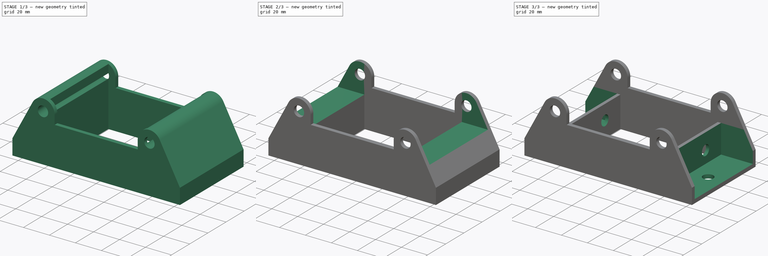
[diagram: build sequence overview — one tinted view per stage of 3, left to right]
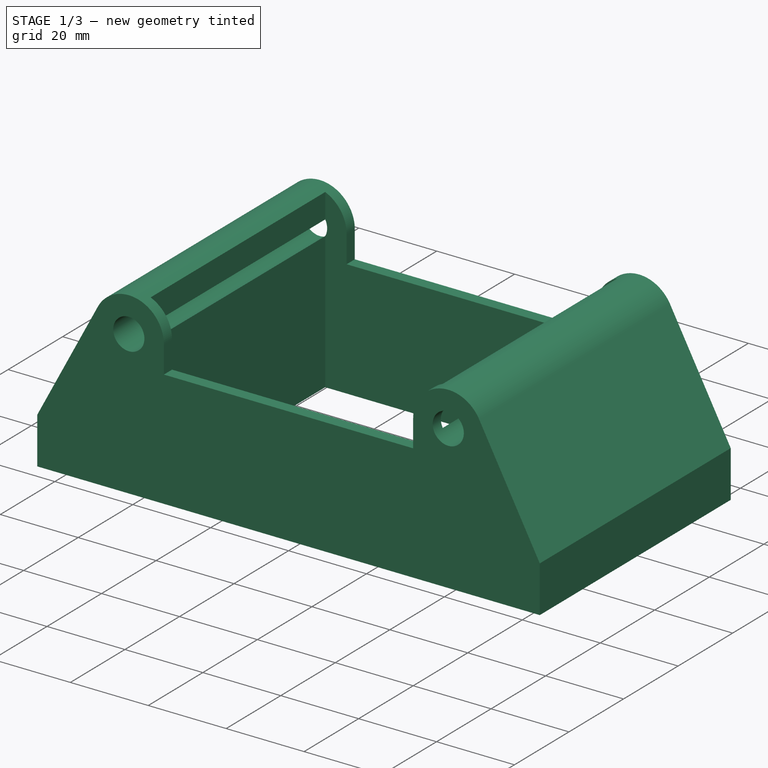
[diagram: stage 1 of 3 — iso view after this stage's code; geometry added in this stage tinted green]
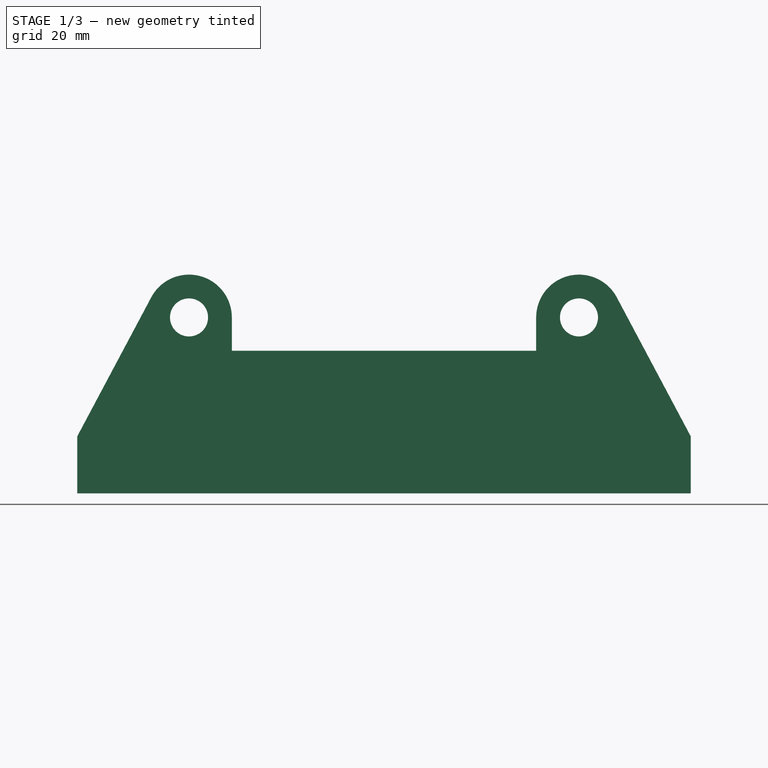
[diagram: stage 1 of 3 — front view after this stage's code; geometry added in this stage tinted green]
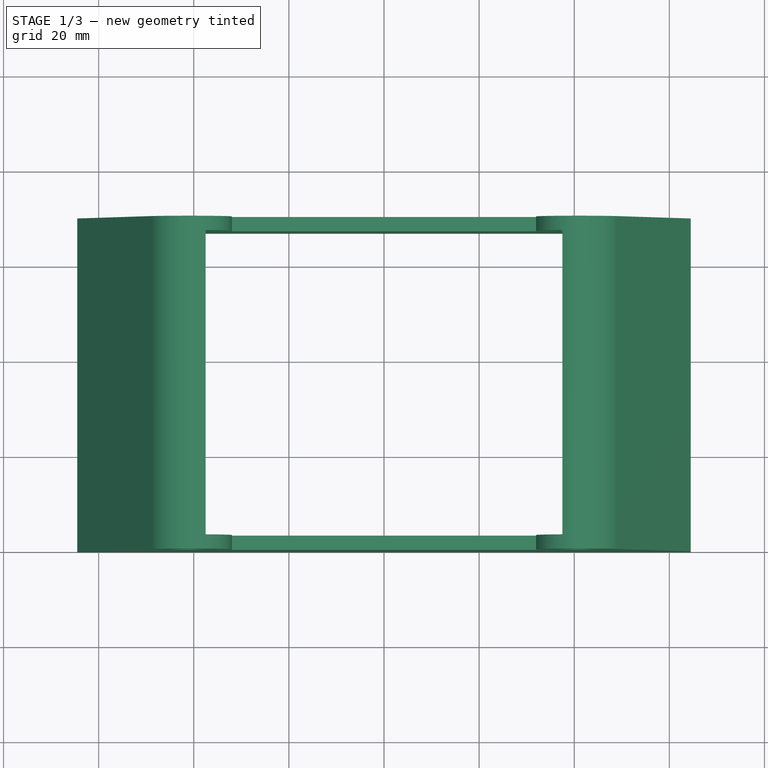
[diagram: stage 1 of 3 — top view after this stage's code; geometry added in this stage tinted green]
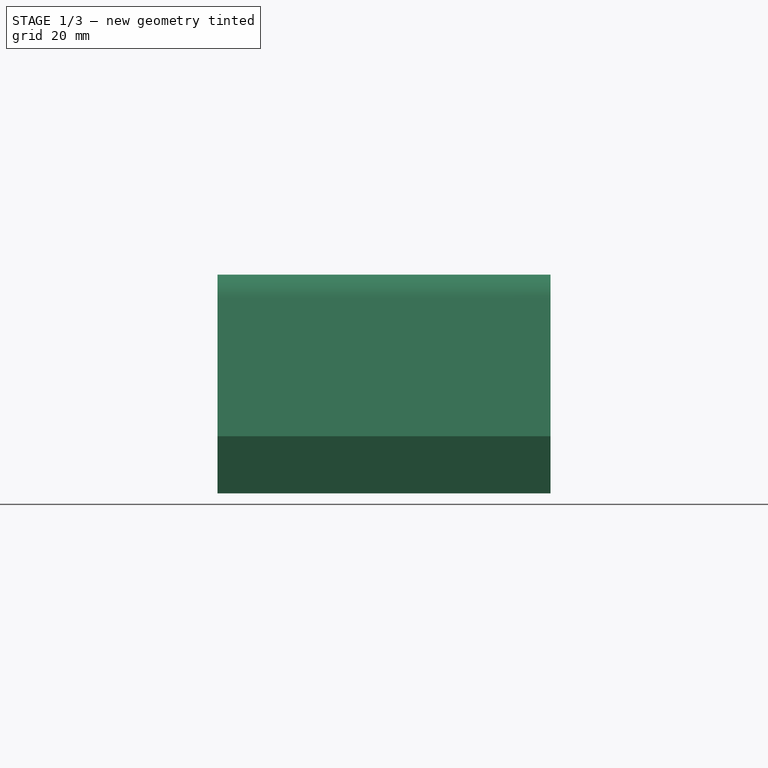
[diagram: stage 1 of 3 — right view after this stage's code; geometry added in this stage tinted green]
FCSTD DOCUMENT  (FreeCAD 0.18.4R)
Label: Winch-Model1-Cable-Guide
License: All rights reserved
LicenseURL: http://en.wikipedia.org/wiki/All_rights_reserved
objects: Sketcher::SketchObject×8, PartDesign::Pocket×7, PartDesign::Pad×1
note: 24 computed .brp shape members not serialized (recipe doc carries the construction recipe); baked Part::Feature solids carry a one-line shape summary decoded from their .brp

FEATURE [Sketcher::SketchObject] Sketch
  MapMode = 5
  sketch-geometry (4):
    g0: LineSegment StartX=-64.5 StartY=70 StartZ=0 EndX=64.5 EndY=70 EndZ=0
    g1: LineSegment StartX=64.5 StartY=70 StartZ=0 EndX=64.5 EndY=0 EndZ=0
    g2: LineSegment StartX=64.5 StartY=0 StartZ=0 EndX=-64.5 EndY=0 EndZ=0
    g3: LineSegment StartX=-64.5 StartY=0 StartZ=0 EndX=-64.5 EndY=70 EndZ=0
  constraints (12):
    c: Coincident(g0,g1)
    c: Coincident(g1,g2)
    c: Coincident(g2,g3)
    c: Coincident(g3,g0)
    c: Horizontal(g0)
    c: Horizontal(g2)
    c: Vertical(g1)
    c: Vertical(g3)
    c: PointOnObject(g2,g-1)
    c: DistanceX(g2,g1) = 129
    c: Symmetric(g2,g1,g-2)
    c: DistanceY(g2,g0) = 70
FEATURE [PartDesign::Pad] Pad
  Length = 46
  Length2 = 100
  Profile = -> Sketch
  Type = 0
FEATURE [Sketcher::SketchObject] Sketch001
  MapMode = 5
  Placement = pos=(0,0,0) rot=(1,0,0;1.5708rad)
  Support = -> [Pad]
  sketch-geometry (12):
    g0: LineSegment StartX=-64.5 StartY=12 StartZ=0 EndX=-48.9449 EndY=41.2282 EndZ=0
    g1: LineSegment StartX=-32 StartY=30 StartZ=0 EndX=32 EndY=30 EndZ=0
    g2: LineSegment StartX=-32 StartY=30 StartZ=0 EndX=-32 EndY=37 EndZ=0
    g3: LineSegment StartX=32 StartY=30 StartZ=0 EndX=32 EndY=37 EndZ=0
    g4: LineSegment StartX=48.9449 StartY=41.2282 StartZ=0 EndX=64.5 EndY=12 EndZ=0
    g5: LineSegment StartX=64.5 StartY=12 StartZ=0 EndX=64.5 EndY=52 EndZ=0
    g6: LineSegment StartX=-64.5 StartY=12 StartZ=0 EndX=-64.5 EndY=52 EndZ=0
    g7: LineSegment StartX=-64.5 StartY=52 StartZ=0 EndX=64.5 EndY=52 EndZ=0
    g8: ArcOfCircle CenterX=-41 CenterY=37 CenterZ=0 NormalX=0 NormalY=0 NormalZ=1 AngleXU=0 Radius=9 StartAngle=0 EndAngle=2.65252
    g9: ArcOfCircle CenterX=41 CenterY=37 CenterZ=0 NormalX=0 NormalY=0 NormalZ=1 AngleXU=0 Radius=9 StartAngle=0.489069 EndAngle=3.14159
    g10: Circle CenterX=-41 CenterY=37 CenterZ=0 NormalX=0 NormalY=0 NormalZ=1 AngleXU=0 Radius=4
    g11: Circle CenterX=41 CenterY=37 CenterZ=0 NormalX=0 NormalY=0 NormalZ=1 AngleXU=0 Radius=4
  constraints (33):
    c: Horizontal(g1)
    c: Coincident(g2,g1)
    c: Vertical(g2)
    c: Coincident(g3,g1)
    c: Vertical(g3)
    c: Coincident(g5,g4)
    c: Vertical(g5)
    c: Coincident(g6,g0)
    c: Vertical(g6)
    c: Coincident(g7,g6)
    c: Coincident(g7,g5)
    c: Horizontal(g7)
    c: Coincident(g8,g0)
    c: Coincident(g8,g2)
    c: Coincident(g9,g3)
    c: Coincident(g9,g4)
    c: DistanceX(g0,g4) = 129
    c: Symmetric(g0,g4,g-2)
    c: DistanceY(g-1,g0) = 12
    c: DistanceY(g-1,g8) = 37
    c: Symmetric(g8,g9,g-2)
    c: Symmetric(g1,g1,g-2)
    c: DistanceY(g-1,g1) = 30
    c: DistanceX(g8,g9) = 82
    c: Radius(g8) = 9
    c: Symmetric(g0,g4,g-2)
    c: Tangent(g0,g8)
    c: DistanceY(g0,g6) = 40
    c: DistanceY(g-1,g2) = 37
    c: Coincident(g10,g8)
    c: Coincident(g11,g9)
    c: Equal(g11,g10)
    c: Radius(g11) = 4
FEATURE [PartDesign::Pocket] Pocket
  Length = 5
  Length2 = 100
  Profile = -> Sketch001
  Type = 1
FEATURE [Sketcher::SketchObject] Sketch002
  MapMode = 5
  Placement = pos=(0,0,0) rot=(1,0,0;3.14159rad)
  Support = -> [Pocket]
  sketch-geometry (4):
    g0: LineSegment StartX=-37.5 StartY=-3 StartZ=0 EndX=37.5 EndY=-3 EndZ=0
    g1: LineSegment StartX=37.5 StartY=-3 StartZ=0 EndX=37.5 EndY=-67 EndZ=0
    g2: LineSegment StartX=37.5 StartY=-67 StartZ=0 EndX=-37.5 EndY=-67 EndZ=0
    g3: LineSegment StartX=-37.5 StartY=-67 StartZ=0 EndX=-37.5 EndY=-3 EndZ=0
  constraints (12):
    c: Coincident(g0,g1)
    c: Coincident(g1,g2)
    c: Coincident(g2,g3)
    c: Coincident(g3,g0)
    c: Horizontal(g0)
    c: Horizontal(g2)
    c: Vertical(g1)
    c: Vertical(g3)
    c: Symmetric(g0,g0,g-2)
    c: DistanceY(g0,g-1) = 3
    c: DistanceY(g2,g0) = 64
    c: DistanceX(g0,g0) = 75
FEATURE [PartDesign::Pocket] Pocket001
  Length = 5
  Length2 = 100
  Profile = -> Sketch002
  Type = 1
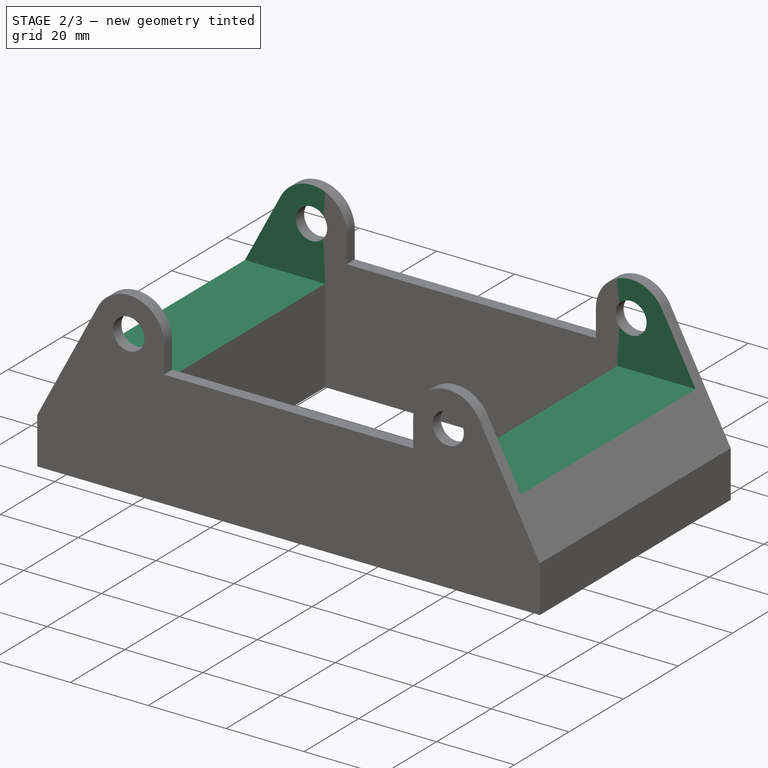
[diagram: stage 2 of 3 — iso view after this stage's code; geometry added in this stage tinted green]
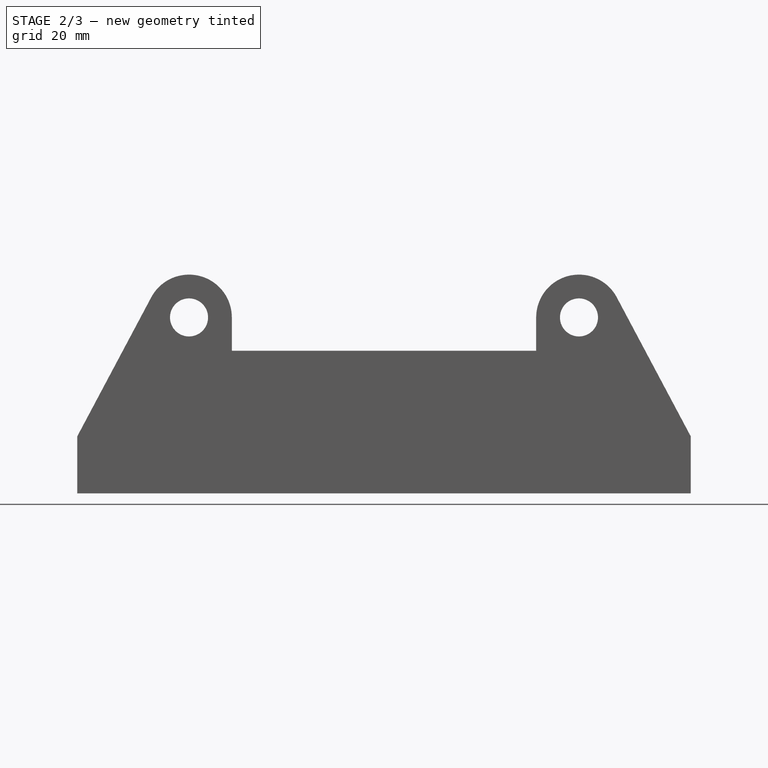
[diagram: stage 2 of 3 — front view after this stage's code; geometry added in this stage tinted green]
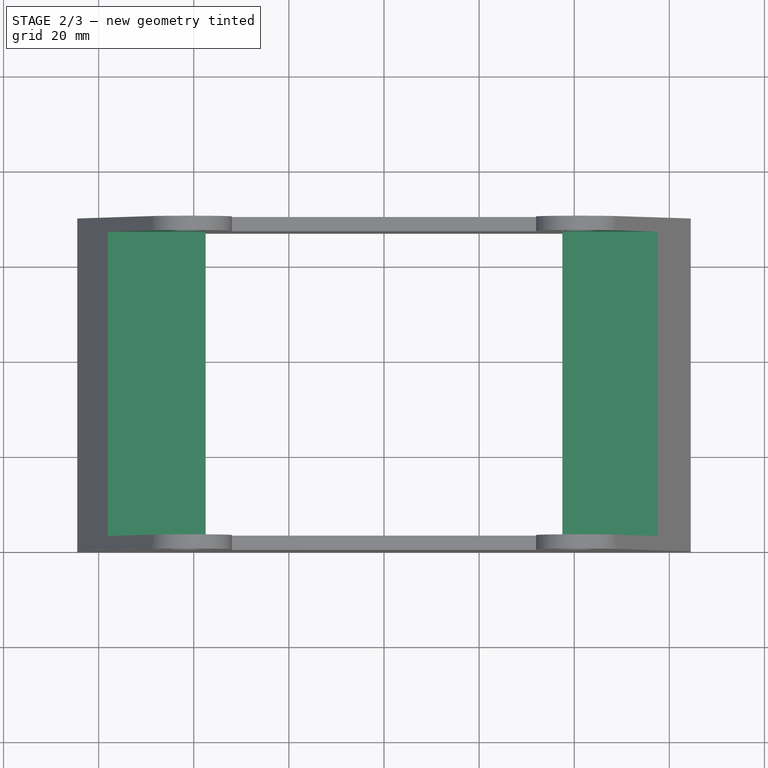
[diagram: stage 2 of 3 — top view after this stage's code; geometry added in this stage tinted green]
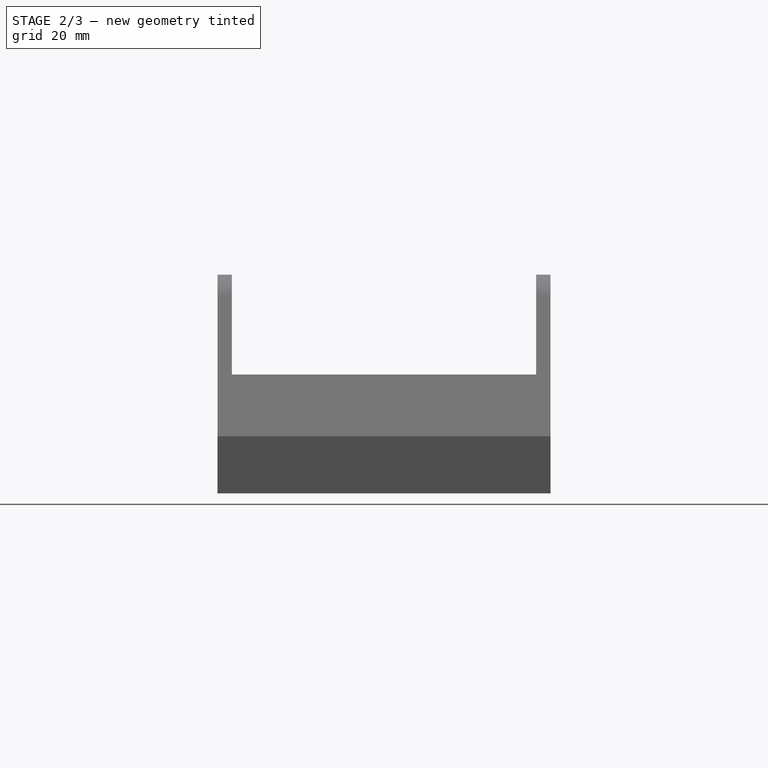
[diagram: stage 2 of 3 — right view after this stage's code; geometry added in this stage tinted green]
FEATURE [Sketcher::SketchObject] Sketch003
  MapMode = 5
  Placement = pos=(-37.5,0,0) rot=(0.57735,0.57735,0.57735;2.0944rad)
  Support = -> [Pocket001]
  sketch-geometry (4):
    g0: LineSegment StartX=3 StartY=60 StartZ=0 EndX=67 EndY=60 EndZ=0
    g1: LineSegment StartX=67 StartY=60 StartZ=0 EndX=67 EndY=24 EndZ=0
    g2: LineSegment StartX=67 StartY=24 StartZ=0 EndX=3 EndY=24 EndZ=0
    g3: LineSegment StartX=3 StartY=24 StartZ=0 EndX=3 EndY=60 EndZ=0
  constraints (12):
    c: Coincident(g0,g1)
    c: Coincident(g1,g2)
    c: Coincident(g2,g3)
    c: Coincident(g3,g0)
    c: Horizontal(g0)
    c: Horizontal(g2)
    c: Vertical(g1)
    c: Vertical(g3)
    c: DistanceX(g-1,g2) = 3
    c: DistanceX(g0,g0) = 64
    c: DistanceY(g-1,g2) = 24
    c: DistanceY(g-1,g0) = 60
FEATURE [PartDesign::Pocket] Pocket002
  Length = 5
  Length2 = 100
  Profile = -> Sketch003
  Type = 1
FEATURE [Sketcher::SketchObject] Sketch004
  MapMode = 5
  Placement = pos=(37.5,0,0) rot=(0.57735,-0.57735,-0.57735;2.0944rad)
  Support = -> [Pocket002]
  sketch-geometry (4):
    g0: LineSegment StartX=-67 StartY=60 StartZ=0 EndX=-3 EndY=60 EndZ=0
    g1: LineSegment StartX=-3 StartY=60 StartZ=0 EndX=-3 EndY=25 EndZ=0
    g2: LineSegment StartX=-3 StartY=25 StartZ=0 EndX=-67 EndY=25 EndZ=0
    g3: LineSegment StartX=-67 StartY=25 StartZ=0 EndX=-67 EndY=60 EndZ=0
  constraints (12):
    c: Coincident(g0,g1)
    c: Coincident(g1,g2)
    c: Coincident(g2,g3)
    c: Coincident(g3,g0)
    c: Horizontal(g0)
    c: Horizontal(g2)
    c: Vertical(g1)
    c: Vertical(g3)
    c: DistanceX(g1,g-1) = 3
    c: DistanceY(g-1,g1) = 25
    c: DistanceY(g-1,g0) = 60
    c: DistanceX(g0,g0) = 64
FEATURE [PartDesign::Pocket] Pocket003
  Length = 5
  Length2 = 100
  Profile = -> Sketch004
  Type = 1
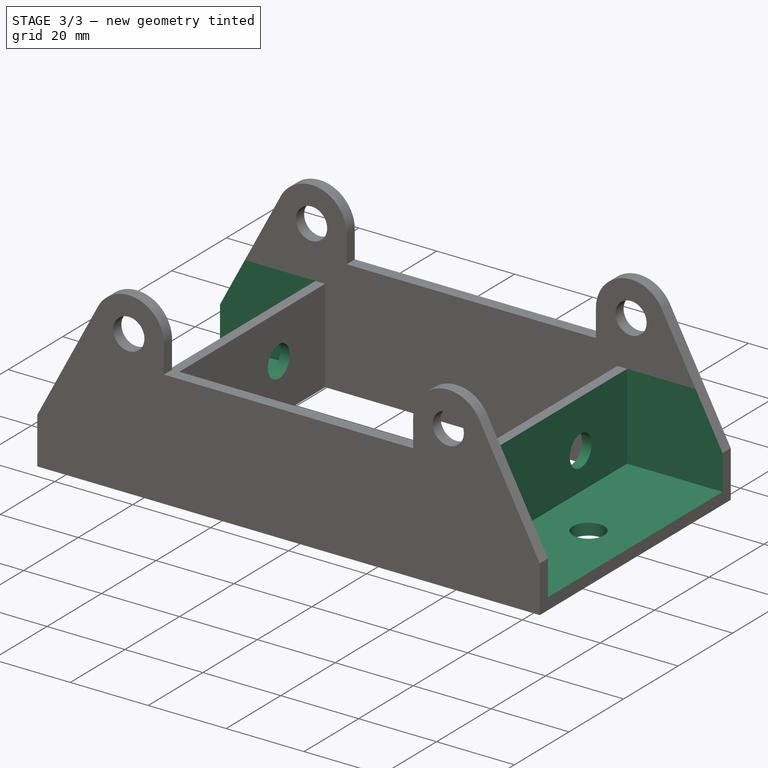
[diagram: stage 3 of 3 — iso view after this stage's code; geometry added in this stage tinted green]
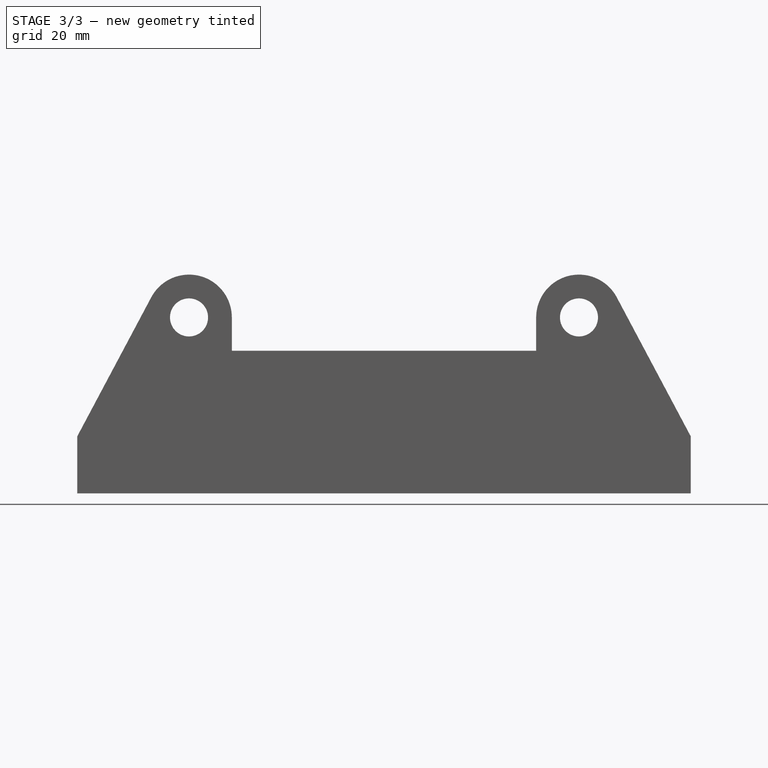
[diagram: stage 3 of 3 — front view after this stage's code; geometry added in this stage tinted green]
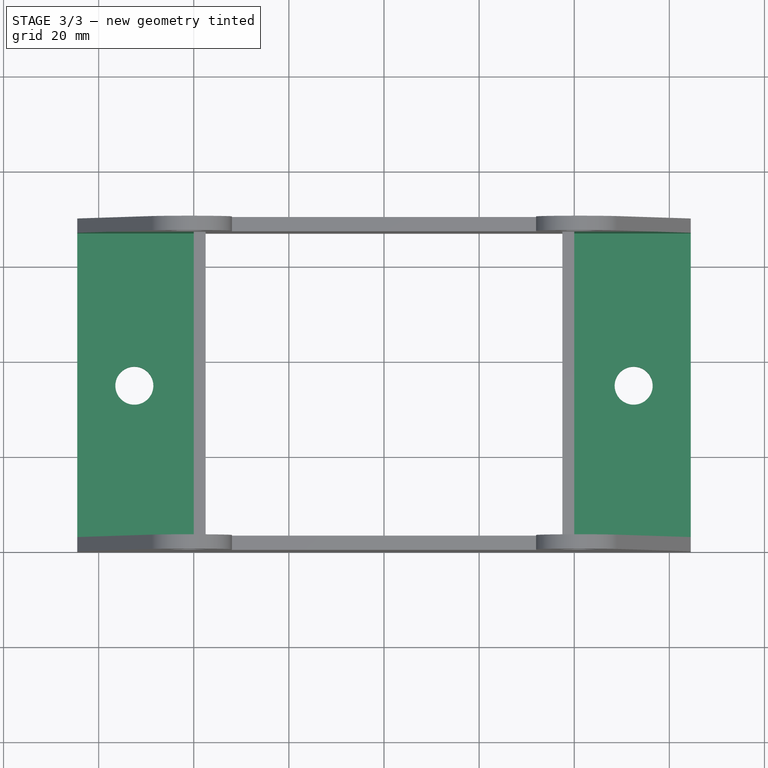
[diagram: stage 3 of 3 — top view after this stage's code; geometry added in this stage tinted green]
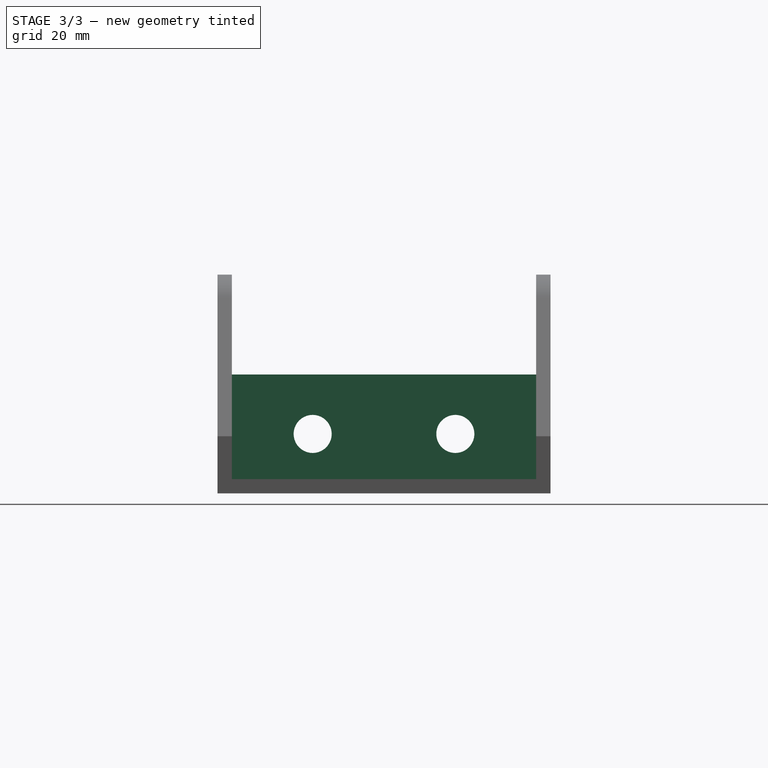
[diagram: stage 3 of 3 — right view after this stage's code; geometry added in this stage tinted green]
FEATURE [Sketcher::SketchObject] Sketch005
  MapMode = 5
  Placement = pos=(0,0,25) rot=(0,0,1;0rad)
  Support = -> [Pocket003]
  sketch-geometry (8):
    g0: LineSegment StartX=-64.5 StartY=67 StartZ=0 EndX=-40 EndY=67 EndZ=0
    g1: LineSegment StartX=-40 StartY=67 StartZ=0 EndX=-40 EndY=3 EndZ=0
    g2: LineSegment StartX=-40 StartY=3 StartZ=0 EndX=-64.5 EndY=3 EndZ=0
    g3: LineSegment StartX=-64.5 StartY=3 StartZ=0 EndX=-64.5 EndY=67 EndZ=0
    g4: LineSegment StartX=40 StartY=67 StartZ=0 EndX=64.5 EndY=67 EndZ=0
    g5: LineSegment StartX=64.5 StartY=67 StartZ=0 EndX=64.5 EndY=3 EndZ=0
    g6: LineSegment StartX=64.5 StartY=3 StartZ=0 EndX=40 EndY=3 EndZ=0
    g7: LineSegment StartX=40 StartY=3 StartZ=0 EndX=40 EndY=67 EndZ=0
  constraints (23):
    c: Coincident(g0,g1)
    c: Coincident(g1,g2)
    c: Coincident(g2,g3)
    c: Coincident(g3,g0)
    c: Horizontal(g0)
    c: Horizontal(g2)
    c: Vertical(g1)
    c: Vertical(g3)
    c: Coincident(g4,g5)
    c: Coincident(g5,g6)
    c: Coincident(g6,g7)
    c: Coincident(g7,g4)
    c: Horizontal(g4)
    c: Horizontal(g6)
    c: Vertical(g5)
    c: Vertical(g7)
    c: Symmetric(g2,g5,g-2)
    c: DistanceY(g-1,g2) = 3
    c: DistanceX(g2,g5) = 129
    c: Symmetric(g1,g6,g-2)
    c: DistanceX(g1,g-1) = 40
    c: DistanceY(g2,g0) = 64
    c: Symmetric(g0,g4,g-2)
FEATURE [PartDesign::Pocket] Pocket004
  Length = 22
  Length2 = 100
  Profile = -> Sketch005
  Type = 0
FEATURE [Sketcher::SketchObject] Sketch006
  MapMode = 5
  Placement = pos=(0,0,3) rot=(0,0,1;0rad)
  Support = -> [Pocket004]
  sketch-geometry (2):
    g0: Circle CenterX=-52.5 CenterY=35 CenterZ=0 NormalX=0 NormalY=0 NormalZ=1 AngleXU=0 Radius=4
    g1: Circle CenterX=52.5 CenterY=35 CenterZ=0 NormalX=0 NormalY=0 NormalZ=1 AngleXU=0 Radius=4
  constraints (5):
    c: Equal(g1,g0)
    c: Radius(g0) = 4
    c: Symmetric(g0,g1,g-2)
    c: DistanceY(g-1,g0) = 35
    c: DistanceX(g0,g1) = 105
FEATURE [PartDesign::Pocket] Pocket005
  Length = 5
  Length2 = 100
  Profile = -> Sketch006
  Type = 0
FEATURE [Sketcher::SketchObject] Sketch007
  MapMode = 5
  Placement = pos=(-40,0,0) rot=(0.57735,-0.57735,-0.57735;2.0944rad)
  Support = -> [Pocket005]
  sketch-geometry (2):
    g0: Circle CenterX=-50 CenterY=12.5 CenterZ=0 NormalX=0 NormalY=0 NormalZ=1 AngleXU=0 Radius=4
    g1: Circle CenterX=-20 CenterY=12.5 CenterZ=0 NormalX=0 NormalY=0 NormalZ=1 AngleXU=0 Radius=4
  constraints (6):
    c: Equal(g0,g1)
    c: Radius(g1) = 4
    c: DistanceY(g0,g1) = 0
    c: DistanceX(g0,g1) = 30
    c: DistanceY(g-1,g1) = 12.5
    c: DistanceX(g1,g-1) = 20
FEATURE [PartDesign::Pocket] Pocket006
  Length = 5
  Length2 = 100
  Profile = -> Sketch007
  Type = 1
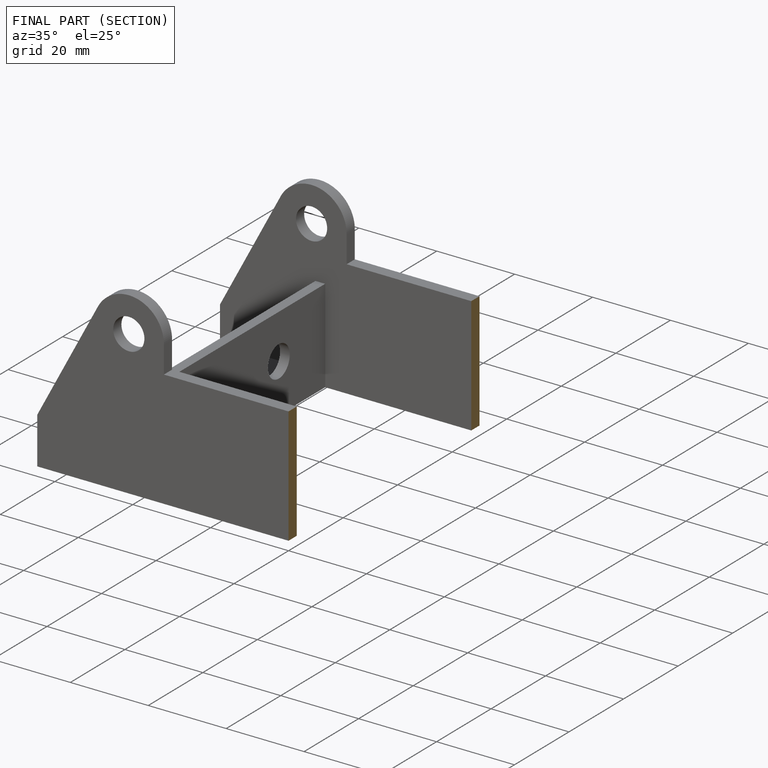
[diagram: finished part — half-section view (interior)]
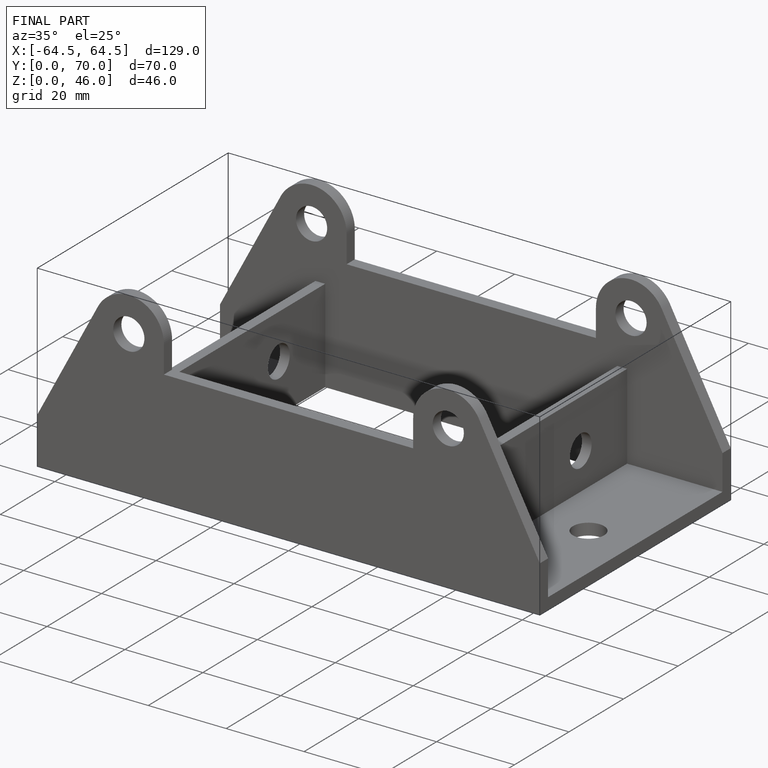
[diagram: finished part — iso view with bounding-box wireframe]
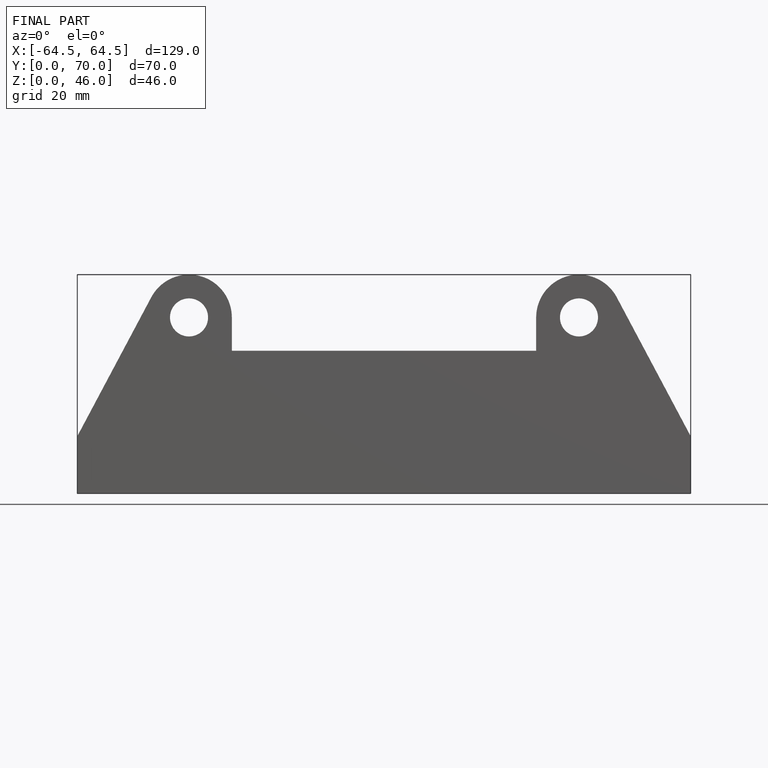
[diagram: finished part — front view with bounding-box wireframe]
